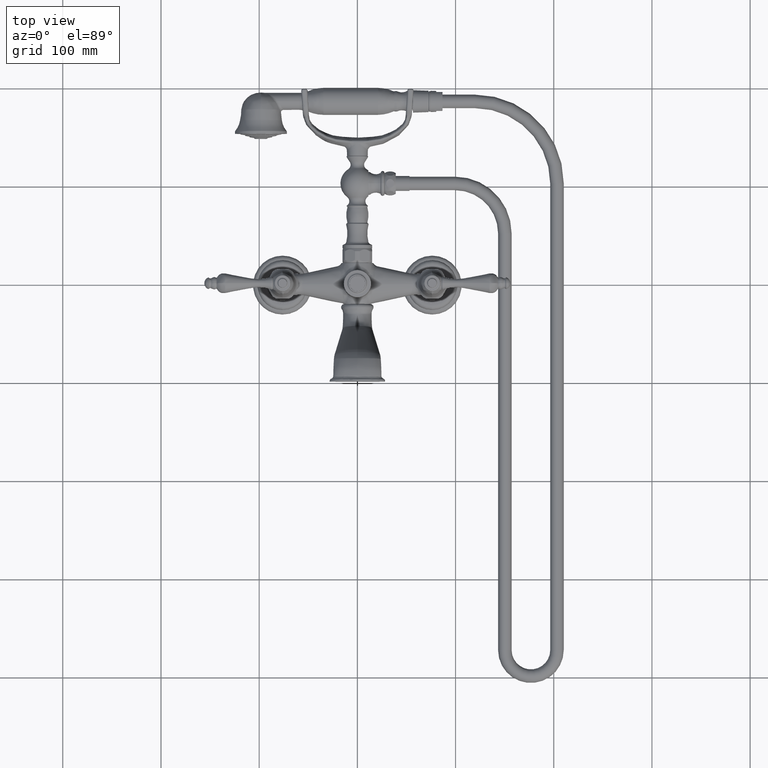
[diagram: clean part render]
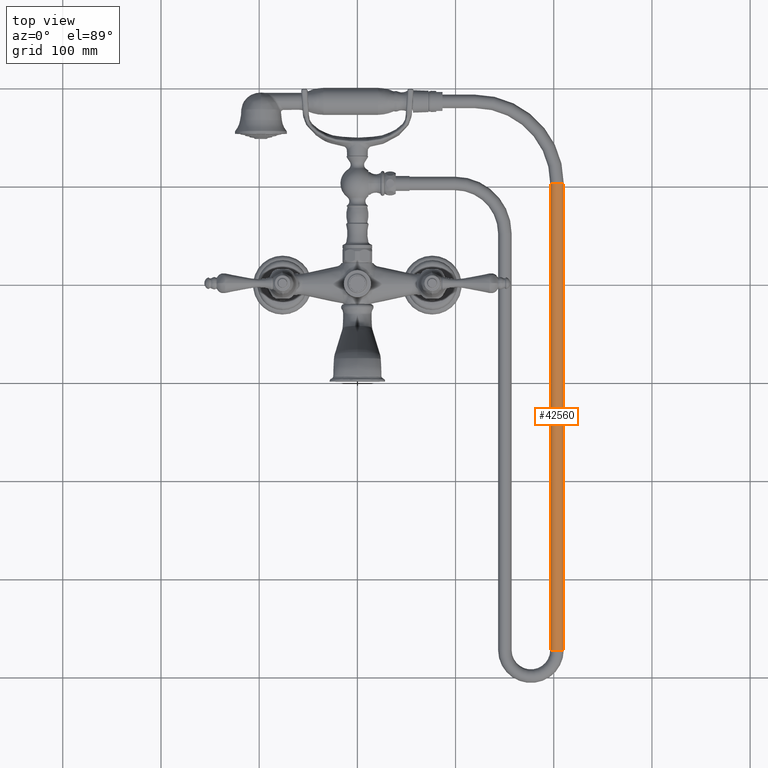
[diagram: same view with one face highlighted and labeled with its STEP entity id]
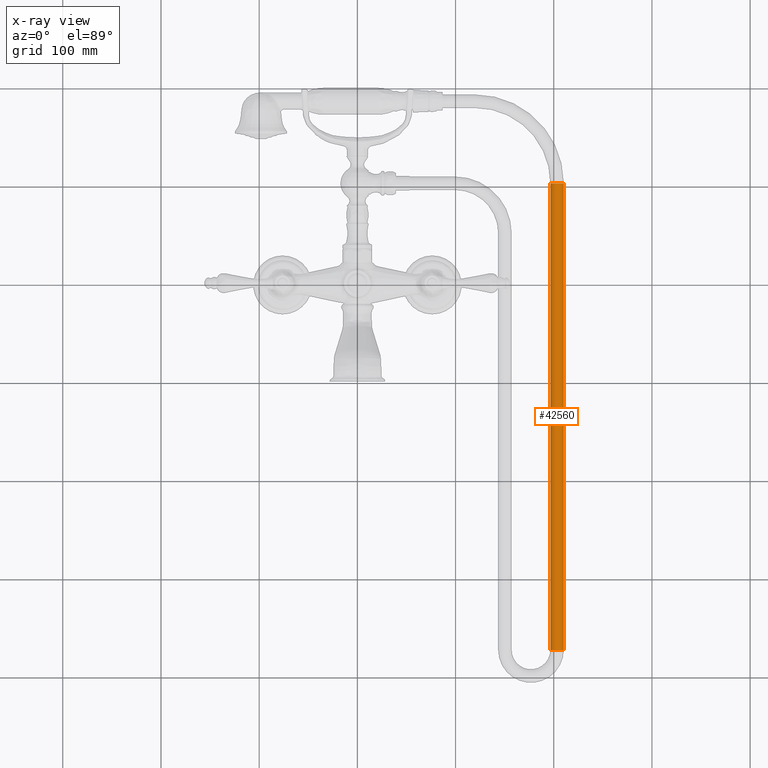
[diagram: x-ray of the same camera — body ghosted, the highlighted face saturated]
A machine part, top view. The second image highlights one B-rep face of the part: STEP entity #42560.
The next image is the same camera in x-ray: the body ghosted, the highlighted face saturated — about 0% of this face is hidden behind the body in this view.
In plain terms, the highlighted cylindrical surface (edge-blend (fillet) strip) has radius 6.858 mm, axis along (0, -1, 0).
Its self-contained STEP definition (entity closure, byte-faithful):
#17449=DIRECTION('',(0.E0,-1.E0,0.E0));
#17450=VECTOR('',#17449,1.8713E1);
#17451=CARTESIAN_POINT('',(7.733426495012E0,4.048267716535E0,0.E0));
#17452=LINE('',#17451,#17450);
#17453=CARTESIAN_POINT('',(8.003426495012E0,4.048267716535E0,0.E0));
#17454=DIRECTION('',(0.E0,-1.E0,0.E0));
#17455=DIRECTION('',(1.E0,0.E0,0.E0));
#17456=AXIS2_PLACEMENT_3D('',#17453,#17454,#17455);
#17458=DIRECTION('',(0.E0,-1.E0,0.E0));
#17459=VECTOR('',#17458,1.8713E1);
#17460=CARTESIAN_POINT('',(8.273426495012E0,4.048267716535E0,0.E0));
#17461=LINE('',#17460,#17459);
#17462=CARTESIAN_POINT('',(8.003426495012E0,-1.466473228346E1,0.E0));
#17463=DIRECTION('',(0.E0,-1.E0,0.E0));
#17464=DIRECTION('',(1.E0,0.E0,0.E0));
#17465=AXIS2_PLACEMENT_3D('',#17462,#17463,#17464);
#19323=CARTESIAN_POINT('',(7.733426495012E0,4.048267716535E0,0.E0));
#19324=CARTESIAN_POINT('',(8.273426495012E0,4.048267716535E0,0.E0));
#19325=VERTEX_POINT('',#19323);
#19326=VERTEX_POINT('',#19324);
#19327=CARTESIAN_POINT('',(7.733426495012E0,-1.466473228346E1,0.E0));
#19328=VERTEX_POINT('',#19327);
#19329=CARTESIAN_POINT('',(8.273426495012E0,-1.466473228346E1,0.E0));
#19330=VERTEX_POINT('',#19329);
#42548=CARTESIAN_POINT('',(8.003426495012E0,4.048267716535E0,0.E0));
#42549=DIRECTION('',(0.E0,-1.E0,0.E0));
#42550=DIRECTION('',(-1.E0,0.E0,0.E0));
#42551=AXIS2_PLACEMENT_3D('',#42548,#42549,#42550);
#42552=CYLINDRICAL_SURFACE('',#42551,2.7E-1);
#42553=ORIENTED_EDGE('',*,*,#42513,.F.);
#42554=ORIENTED_EDGE('',*,*,#42543,.T.);
#42556=ORIENTED_EDGE('',*,*,#42555,.T.);
#42557=ORIENTED_EDGE('',*,*,#42539,.F.);
#42558=EDGE_LOOP('',(#42553,#42554,#42556,#42557));
#42559=FACE_OUTER_BOUND('',#42558,.F.);
#42560=ADVANCED_FACE('',(#42559),#42552,.T.);
#17457=CIRCLE('',#17456,2.7E-1);
#17466=CIRCLE('',#17465,2.7E-1);
#42513=EDGE_CURVE('',#19326,#19325,#17457,.T.);
#42539=EDGE_CURVE('',#19325,#19328,#17452,.T.);
#42543=EDGE_CURVE('',#19326,#19330,#17461,.T.);
#42555=EDGE_CURVE('',#19330,#19328,#17466,.T.);